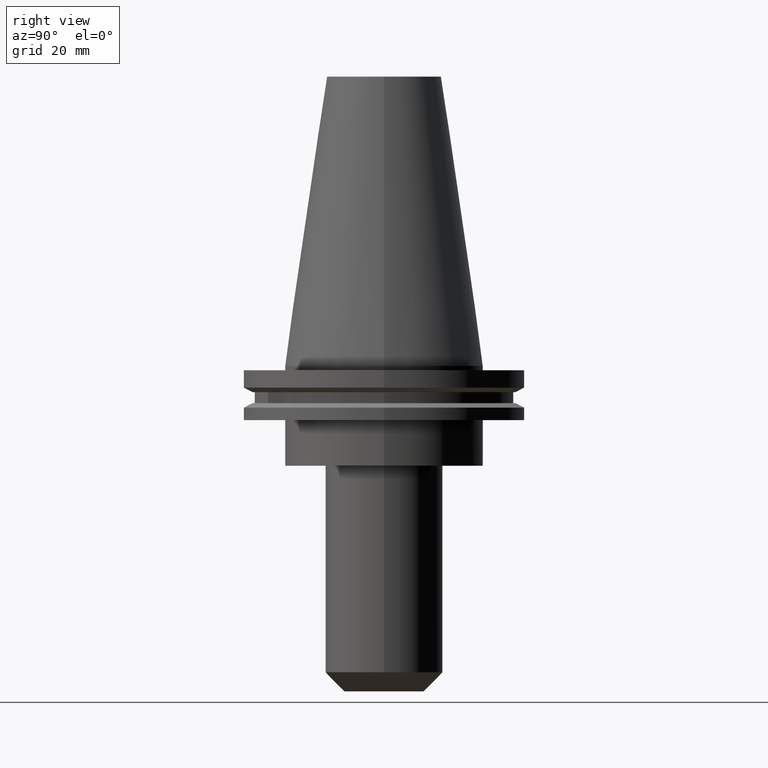
[diagram: clean part render]
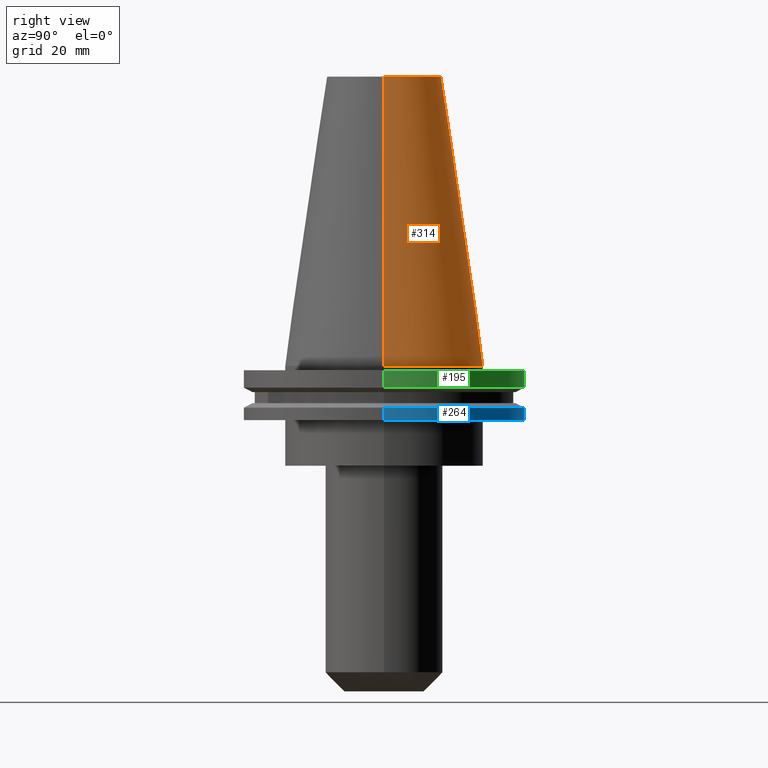
[diagram: same view with three faces highlighted in distinct colors, each labeled with its STEP entity id]
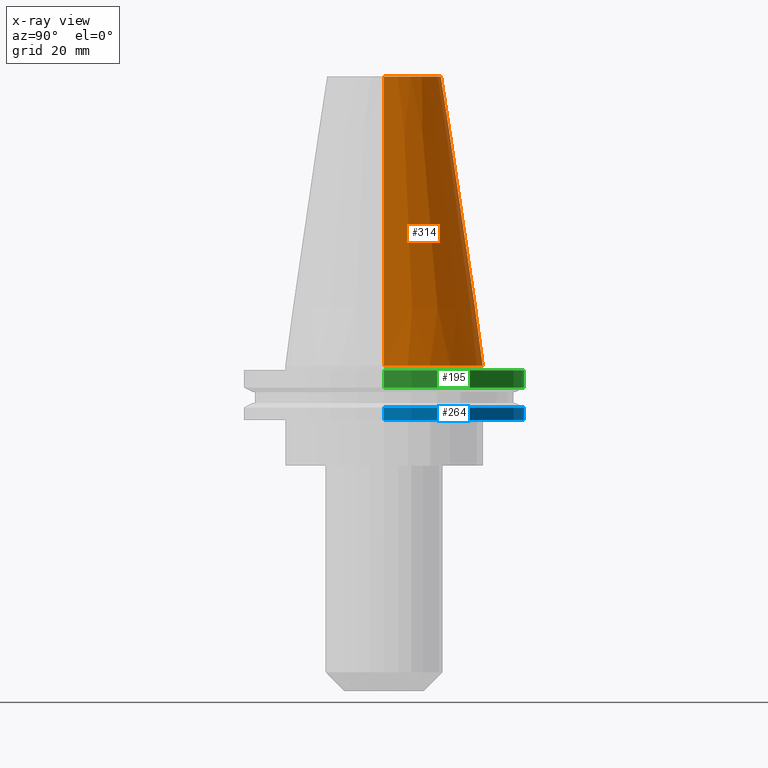
[diagram: x-ray of the same camera — body ghosted, the three highlighted faces saturated]
A machine part, right view with three faces highlighted in distinct colors.
The next image is the same camera in x-ray (body ghosted, the three faces saturated) — at least one of them is partly hidden behind the body in this view.
Their STEP definitions:

[orange] entity #314 — the highlighted conical surface has half-angle 8.297 deg.
#34 = VERTEX_POINT ( 'NONE', #327 ) ;
#37 = FACE_OUTER_BOUND ( 'NONE', #234, .T. ) ;
#43 = DIRECTION ( 'NONE',  ( -1.000000000000000000, 0.000000000000000000, 0.000000000000000000 ) ) ;
#53 = DIRECTION ( 'NONE',  ( 0.1443082272672999988, 1.767266086135277066E-17, -0.9895327864921755756 ) ) ;
#100 = DIRECTION ( 'NONE',  ( 0.000000000000000000, 0.000000000000000000, -1.000000000000000000 ) ) ;
#129 = CARTESIAN_POINT ( 'NONE',  ( -20.10819343178871321, 0.000000000000000000, 101.5999999999999801 ) ) ;
#130 = VECTOR ( 'NONE', #53, 999.9999999999998863 ) ;
#160 = ORIENTED_EDGE ( 'NONE', *, *, #464, .T. ) ;
#165 = CARTESIAN_POINT ( 'NONE',  ( 20.10819343178871321, 3.369811209154858606E-15, 101.5999999999999801 ) ) ;
#170 = CARTESIAN_POINT ( 'NONE',  ( 0.000000000000000000, 0.000000000000000000, 101.5999999999999801 ) ) ;
#177 = DIRECTION ( 'NONE',  ( 1.000000000000000000, 0.000000000000000000, 0.000000000000000000 ) ) ;
#217 = CARTESIAN_POINT ( 'NONE',  ( -34.92499999999999005, 0.000000000000000000, 0.000000000000000000 ) ) ;
#234 = EDGE_LOOP ( 'NONE', ( #384, #160, #714, #500 ) ) ;
#237 = CARTESIAN_POINT ( 'NONE',  ( 0.000000000000000000, 0.000000000000000000, 0.000000000000000000 ) ) ;
#257 = CIRCLE ( 'NONE', #609, 34.92499999999999005 ) ;
#314 = ADVANCED_FACE ( 'NONE', ( #37 ), #696, .T. ) ;
#327 = CARTESIAN_POINT ( 'NONE',  ( -34.92499999999999005, 0.000000000000000000, 0.000000000000000000 ) ) ;
#357 = EDGE_CURVE ( 'NONE', #460, #489, #752, .T. ) ;
#365 = CARTESIAN_POINT ( 'NONE',  ( 34.92499999999999005, 4.277078946022130098E-15, 0.000000000000000000 ) ) ;
#372 = DIRECTION ( 'NONE',  ( -0.000000000000000000, -0.000000000000000000, 1.000000000000000000 ) ) ;
#384 = ORIENTED_EDGE ( 'NONE', *, *, #357, .F. ) ;
#419 = DIRECTION ( 'NONE',  ( -0.1443082272672999988, 0.000000000000000000, -0.9895327864921755756 ) ) ;
#460 = VERTEX_POINT ( 'NONE', #165 ) ;
#464 = EDGE_CURVE ( 'NONE', #460, #711, #692, .T. ) ;
#489 = VERTEX_POINT ( 'NONE', #129 ) ;
#500 = ORIENTED_EDGE ( 'NONE', *, *, #617, .F. ) ;
#519 = VECTOR ( 'NONE', #419, 999.9999999999998863 ) ;
#609 = AXIS2_PLACEMENT_3D ( 'NONE', #612, #681, #177 ) ;
#610 = DIRECTION ( 'NONE',  ( 1.000000000000000000, 0.000000000000000000, 0.000000000000000000 ) ) ;
#612 = CARTESIAN_POINT ( 'NONE',  ( 0.000000000000000000, 0.000000000000000000, 0.000000000000000000 ) ) ;
#617 = EDGE_CURVE ( 'NONE', #489, #34, #809, .T. ) ;
#623 = CARTESIAN_POINT ( 'NONE',  ( 34.92499999999999005, 4.277078946022130098E-15, 0.000000000000000000 ) ) ;
#650 = AXIS2_PLACEMENT_3D ( 'NONE', #170, #372, #610 ) ;
#680 = EDGE_CURVE ( 'NONE', #711, #34, #257, .T. ) ;
#681 = DIRECTION ( 'NONE',  ( -0.000000000000000000, -0.000000000000000000, 1.000000000000000000 ) ) ;
#692 = LINE ( 'NONE', #623, #130 ) ;
#696 = CONICAL_SURFACE ( 'NONE', #822, 34.92499999999999005, 0.1448138465474119452 ) ;
#711 = VERTEX_POINT ( 'NONE', #365 ) ;
#714 = ORIENTED_EDGE ( 'NONE', *, *, #680, .T. ) ;
#752 = CIRCLE ( 'NONE', #650, 20.10819343178871321 ) ;
#809 = LINE ( 'NONE', #217, #519 ) ;
#822 = AXIS2_PLACEMENT_3D ( 'NONE', #237, #100, #43 ) ;

[blue] entity #264 — the highlighted cylindrical surface (partial cylindrical patch) has radius 49.215 mm, axis along (-0, -0, 1).
#14 = AXIS2_PLACEMENT_3D ( 'NONE', #619, #172, #35 ) ;
#35 = DIRECTION ( 'NONE',  ( 1.000000000000000000, 0.000000000000000000, 0.000000000000000000 ) ) ;
#36 = VERTEX_POINT ( 'NONE', #181 ) ;
#84 = CARTESIAN_POINT ( 'NONE',  ( -49.21499999999998920, 6.027099222003697037E-15, -19.04999999999999716 ) ) ;
#140 = AXIS2_PLACEMENT_3D ( 'NONE', #815, #618, #291 ) ;
#147 = EDGE_CURVE ( 'NONE', #556, #576, #530, .T. ) ;
#152 = FACE_OUTER_BOUND ( 'NONE', #574, .T. ) ;
#172 = DIRECTION ( 'NONE',  ( -0.000000000000000000, -0.000000000000000000, 1.000000000000000000 ) ) ;
#181 = CARTESIAN_POINT ( 'NONE',  ( 49.21499999999998920, 0.000000000000000000, -14.65761014474876944 ) ) ;
#199 = VERTEX_POINT ( 'NONE', #215 ) ;
#202 = CARTESIAN_POINT ( 'NONE',  ( -49.21499999999998920, 6.027099222003697037E-15, 101.5999999999999943 ) ) ;
#215 = CARTESIAN_POINT ( 'NONE',  ( 49.21499999999998920, 0.000000000000000000, -19.04999999999999716 ) ) ;
#222 = CYLINDRICAL_SURFACE ( 'NONE', #140, 49.21499999999998920 ) ;
#244 = DIRECTION ( 'NONE',  ( 1.000000000000000000, 0.000000000000000000, 0.000000000000000000 ) ) ;
#264 = ADVANCED_FACE ( 'NONE', ( #152 ), #222, .T. ) ;
#274 = CIRCLE ( 'NONE', #350, 49.21499999999998920 ) ;
#291 = DIRECTION ( 'NONE',  ( 1.000000000000000000, 0.000000000000000000, 0.000000000000000000 ) ) ;
#334 = VECTOR ( 'NONE', #356, 1000.000000000000000 ) ;
#350 = AXIS2_PLACEMENT_3D ( 'NONE', #570, #835, #244 ) ;
#356 = DIRECTION ( 'NONE',  ( -0.000000000000000000, -0.000000000000000000, 1.000000000000000000 ) ) ;
#364 = ORIENTED_EDGE ( 'NONE', *, *, #727, .T. ) ;
#379 = EDGE_CURVE ( 'NONE', #199, #36, #439, .T. ) ;
#415 = CARTESIAN_POINT ( 'NONE',  ( -49.21499999999998920, 6.027099222003697037E-15, -14.65761014474876944 ) ) ;
#439 = LINE ( 'NONE', #818, #334 ) ;
#456 = VECTOR ( 'NONE', #733, 1000.000000000000000 ) ;
#512 = ORIENTED_EDGE ( 'NONE', *, *, #147, .T. ) ;
#530 = LINE ( 'NONE', #202, #456 ) ;
#533 = CIRCLE ( 'NONE', #14, 49.21499999999998920 ) ;
#548 = ORIENTED_EDGE ( 'NONE', *, *, #379, .F. ) ;
#556 = VERTEX_POINT ( 'NONE', #84 ) ;
#570 = CARTESIAN_POINT ( 'NONE',  ( 0.000000000000000000, 0.000000000000000000, -14.65761014474876944 ) ) ;
#574 = EDGE_LOOP ( 'NONE', ( #364, #512, #638, #548 ) ) ;
#576 = VERTEX_POINT ( 'NONE', #415 ) ;
#618 = DIRECTION ( 'NONE',  ( -0.000000000000000000, -0.000000000000000000, 1.000000000000000000 ) ) ;
#619 = CARTESIAN_POINT ( 'NONE',  ( 0.000000000000000000, 0.000000000000000000, -19.04999999999999716 ) ) ;
#638 = ORIENTED_EDGE ( 'NONE', *, *, #792, .F. ) ;
#727 = EDGE_CURVE ( 'NONE', #199, #556, #533, .T. ) ;
#733 = DIRECTION ( 'NONE',  ( -0.000000000000000000, -0.000000000000000000, 1.000000000000000000 ) ) ;
#792 = EDGE_CURVE ( 'NONE', #36, #576, #274, .T. ) ;
#815 = CARTESIAN_POINT ( 'NONE',  ( 0.000000000000000000, 0.000000000000000000, 101.5999999999999943 ) ) ;
#818 = CARTESIAN_POINT ( 'NONE',  ( 49.21499999999998920, 0.000000000000000000, 101.5999999999999943 ) ) ;
#835 = DIRECTION ( 'NONE',  ( -0.000000000000000000, -0.000000000000000000, 1.000000000000000000 ) ) ;

[green] entity #195 — the highlighted cylindrical surface (partial cylindrical patch) has radius 49.215 mm, axis along (-0, -0, 1).
#12 = AXIS2_PLACEMENT_3D ( 'NONE', #279, #806, #411 ) ;
#19 = LINE ( 'NONE', #67, #572 ) ;
#58 = ORIENTED_EDGE ( 'NONE', *, *, #182, .F. ) ;
#59 = CARTESIAN_POINT ( 'NONE',  ( -49.21499999999999631, 6.027099222003697826E-15, 101.5999999999999943 ) ) ;
#67 = CARTESIAN_POINT ( 'NONE',  ( 49.21499999999999631, 0.000000000000000000, 101.5999999999999943 ) ) ;
#101 = DIRECTION ( 'NONE',  ( -0.000000000000000000, -0.000000000000000000, 1.000000000000000000 ) ) ;
#131 = CIRCLE ( 'NONE', #142, 49.21500000000000341 ) ;
#142 = AXIS2_PLACEMENT_3D ( 'NONE', #303, #101, #225 ) ;
#161 = EDGE_CURVE ( 'NONE', #811, #798, #371, .T. ) ;
#182 = EDGE_CURVE ( 'NONE', #194, #811, #19, .T. ) ;
#194 = VERTEX_POINT ( 'NONE', #791 ) ;
#195 = ADVANCED_FACE ( 'NONE', ( #470 ), #730, .T. ) ;
#207 = DIRECTION ( 'NONE',  ( -0.000000000000000000, -0.000000000000000000, 1.000000000000000000 ) ) ;
#225 = DIRECTION ( 'NONE',  ( 1.000000000000000000, 0.000000000000000000, 0.000000000000000000 ) ) ;
#261 = VECTOR ( 'NONE', #646, 1000.000000000000000 ) ;
#266 = CARTESIAN_POINT ( 'NONE',  ( 49.21499999999999631, 0.000000000000000000, -1.499999999999987566 ) ) ;
#272 = DIRECTION ( 'NONE',  ( -0.000000000000000000, -0.000000000000000000, 1.000000000000000000 ) ) ;
#279 = CARTESIAN_POINT ( 'NONE',  ( 0.000000000000000000, 0.000000000000000000, 101.5999999999999943 ) ) ;
#303 = CARTESIAN_POINT ( 'NONE',  ( 0.000000000000000000, 0.000000000000000000, -7.602389855251287187 ) ) ;
#313 = ORIENTED_EDGE ( 'NONE', *, *, #814, .T. ) ;
#353 = DIRECTION ( 'NONE',  ( 1.000000000000000000, 0.000000000000000000, 0.000000000000000000 ) ) ;
#371 = CIRCLE ( 'NONE', #647, 49.21499999999999631 ) ;
#397 = CARTESIAN_POINT ( 'NONE',  ( -49.21499999999999631, 6.027099222003697826E-15, -1.499999999999987566 ) ) ;
#411 = DIRECTION ( 'NONE',  ( 1.000000000000000000, 0.000000000000000000, 0.000000000000000000 ) ) ;
#452 = ORIENTED_EDGE ( 'NONE', *, *, #668, .T. ) ;
#470 = FACE_OUTER_BOUND ( 'NONE', #652, .T. ) ;
#572 = VECTOR ( 'NONE', #207, 1000.000000000000000 ) ;
#600 = CARTESIAN_POINT ( 'NONE',  ( 0.000000000000000000, 0.000000000000000000, -1.499999999999987566 ) ) ;
#646 = DIRECTION ( 'NONE',  ( -0.000000000000000000, -0.000000000000000000, 1.000000000000000000 ) ) ;
#647 = AXIS2_PLACEMENT_3D ( 'NONE', #600, #272, #353 ) ;
#652 = EDGE_LOOP ( 'NONE', ( #452, #313, #776, #58 ) ) ;
#668 = EDGE_CURVE ( 'NONE', #194, #808, #131, .T. ) ;
#702 = CARTESIAN_POINT ( 'NONE',  ( -49.21500000000000341, 6.027099222003699404E-15, -7.602389855251287187 ) ) ;
#730 = CYLINDRICAL_SURFACE ( 'NONE', #12, 49.21499999999999631 ) ;
#776 = ORIENTED_EDGE ( 'NONE', *, *, #161, .F. ) ;
#788 = LINE ( 'NONE', #59, #261 ) ;
#791 = CARTESIAN_POINT ( 'NONE',  ( 49.21500000000000341, 0.000000000000000000, -7.602389855251287187 ) ) ;
#798 = VERTEX_POINT ( 'NONE', #397 ) ;
#806 = DIRECTION ( 'NONE',  ( -0.000000000000000000, -0.000000000000000000, 1.000000000000000000 ) ) ;
#808 = VERTEX_POINT ( 'NONE', #702 ) ;
#811 = VERTEX_POINT ( 'NONE', #266 ) ;
#814 = EDGE_CURVE ( 'NONE', #808, #798, #788, .T. ) ;